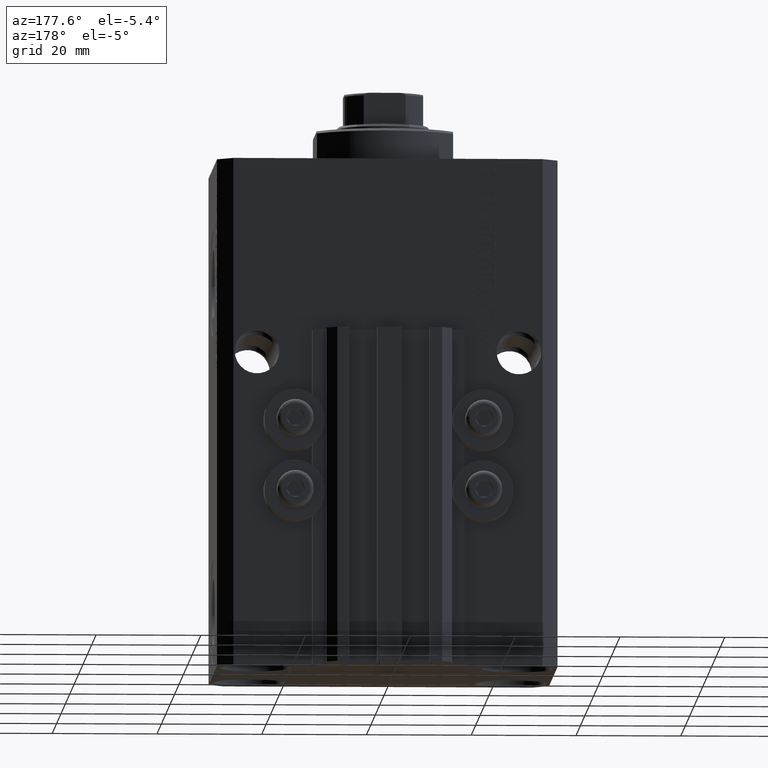
[diagram: clean part render]
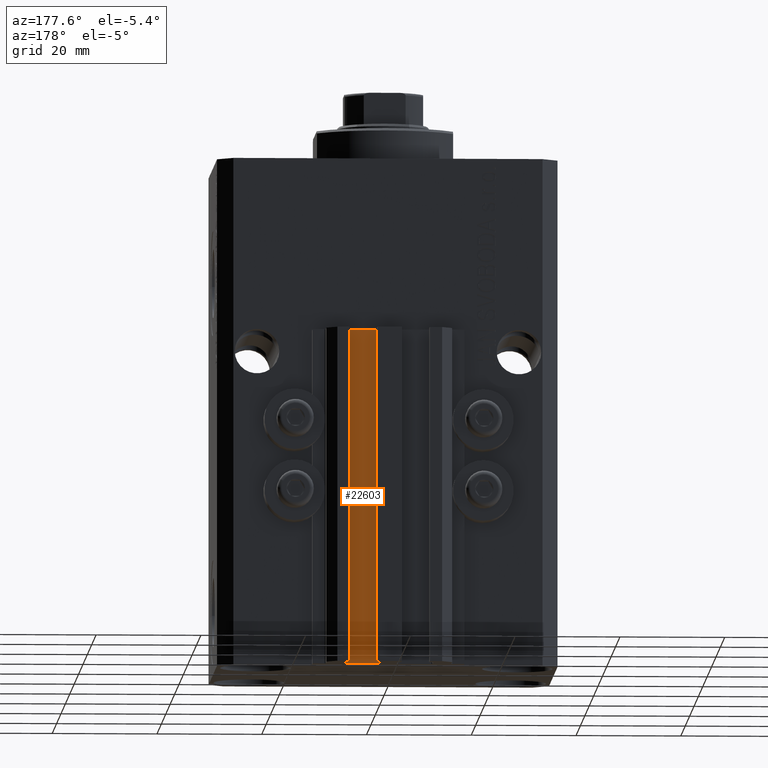
[diagram: same view with one face highlighted and labeled with its STEP entity id]
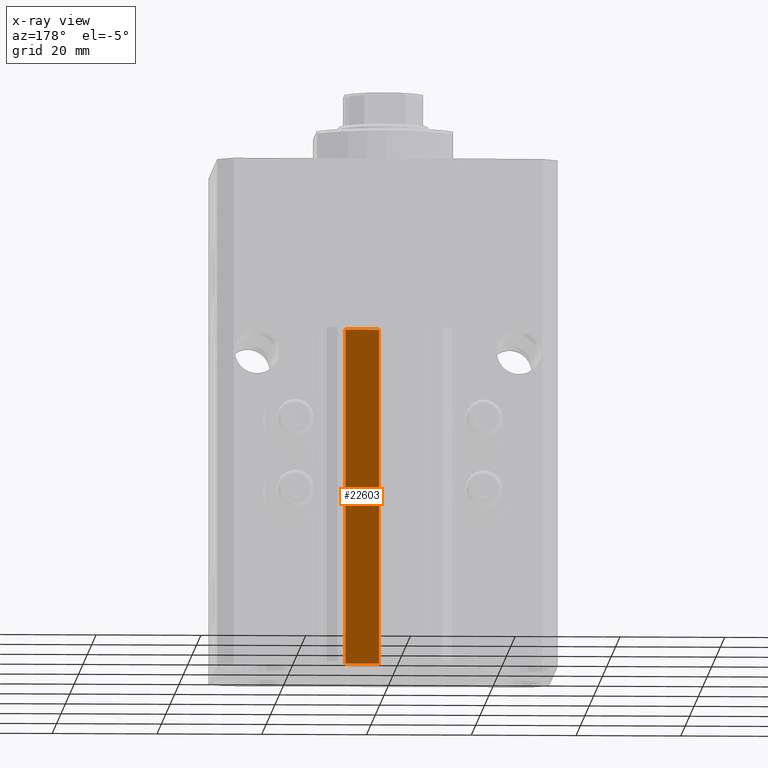
[diagram: x-ray of the same camera — body ghosted, the highlighted face saturated]
A machine part, auxiliary view. The second image highlights one B-rep face of the part: STEP entity #22603.
The next image is the same camera in x-ray: the body ghosted, the highlighted face saturated — about 0% of this face is hidden behind the body in this view.
In plain terms, the highlighted planar face has unit normal (0, 1, 0).
Its self-contained STEP definition (entity closure, byte-faithful):
#1119 = LINE ( 'NONE', #33135, #24439 ) ;
#1964 = LINE ( 'NONE', #41575, #3849 ) ;
#2640 = CARTESIAN_POINT ( 'NONE',  ( 8.200000000000001066, 24.49999999999949196, -97.00000000000000000 ) ) ;
#3849 = VECTOR ( 'NONE', #12928, 1000.000000000000000 ) ;
#3858 = DIRECTION ( 'NONE',  ( 0.000000000000000000, 0.000000000000000000, 1.000000000000000000 ) ) ;
#4519 = VERTEX_POINT ( 'NONE', #2640 ) ;
#4565 = CARTESIAN_POINT ( 'NONE',  ( 8.200000000000001066, 24.49999999999949196, -97.00000000000000000 ) ) ;
#5284 = ORIENTED_EDGE ( 'NONE', *, *, #24708, .F. ) ;
#5786 = CARTESIAN_POINT ( 'NONE',  ( 1.800000000000000933, 24.49999999999949196, -97.00000000000000000 ) ) ;
#12928 = DIRECTION ( 'NONE',  ( -1.000000000000000000, 0.000000000000000000, 0.000000000000000000 ) ) ;
#15680 = DIRECTION ( 'NONE',  ( 0.000000000000000000, 0.000000000000000000, 1.000000000000000000 ) ) ;
#17725 = ORIENTED_EDGE ( 'NONE', *, *, #27808, .F. ) ;
#18665 = AXIS2_PLACEMENT_3D ( 'NONE', #4565, #29214, #3858 ) ;
#18686 = PLANE ( 'NONE',  #18665 ) ;
#19704 = DIRECTION ( 'NONE',  ( 0.000000000000000000, 0.000000000000000000, 1.000000000000000000 ) ) ;
#22351 = CARTESIAN_POINT ( 'NONE',  ( 8.200000000000001066, 24.49999999999949196, -97.00000000000000000 ) ) ;
#22603 = ADVANCED_FACE ( 'NONE', ( #36811 ), #18686, .T. ) ;
#24439 = VECTOR ( 'NONE', #15680, 1000.000000000000000 ) ;
#24708 = EDGE_CURVE ( 'NONE', #25291, #26433, #28960, .T. ) ;
#25291 = VERTEX_POINT ( 'NONE', #29526 ) ;
#25377 = DIRECTION ( 'NONE',  ( -1.000000000000000000, 0.000000000000000000, 0.000000000000000000 ) ) ;
#26433 = VERTEX_POINT ( 'NONE', #30079 ) ;
#27808 = EDGE_CURVE ( 'NONE', #4519, #25291, #33779, .T. ) ;
#28960 = LINE ( 'NONE', #43474, #41184 ) ;
#29214 = DIRECTION ( 'NONE',  ( 0.000000000000000000, 1.000000000000000000, -0.000000000000000000 ) ) ;
#29526 = CARTESIAN_POINT ( 'NONE',  ( 8.200000000000001066, 24.49999999999949196, -33.00000000000000000 ) ) ;
#29655 = ORIENTED_EDGE ( 'NONE', *, *, #37310, .T. ) ;
#30078 = EDGE_LOOP ( 'NONE', ( #5284, #17725, #38521, #29655 ) ) ;
#30079 = CARTESIAN_POINT ( 'NONE',  ( 1.800000000000000933, 24.49999999999949196, -33.00000000000000000 ) ) ;
#31112 = VERTEX_POINT ( 'NONE', #5786 ) ;
#33135 = CARTESIAN_POINT ( 'NONE',  ( 1.800000000000000933, 24.49999999999949196, -97.00000000000000000 ) ) ;
#33779 = LINE ( 'NONE', #22351, #46665 ) ;
#36811 = FACE_OUTER_BOUND ( 'NONE', #30078, .T. ) ;
#37310 = EDGE_CURVE ( 'NONE', #31112, #26433, #1119, .T. ) ;
#38521 = ORIENTED_EDGE ( 'NONE', *, *, #38941, .T. ) ;
#38941 = EDGE_CURVE ( 'NONE', #4519, #31112, #1964, .T. ) ;
#41184 = VECTOR ( 'NONE', #25377, 1000.000000000000000 ) ;
#41575 = CARTESIAN_POINT ( 'NONE',  ( 8.200000000000001066, 24.49999999999949196, -97.00000000000000000 ) ) ;
#43474 = CARTESIAN_POINT ( 'NONE',  ( 8.200000000000001066, 24.49999999999949196, -33.00000000000000000 ) ) ;
#46665 = VECTOR ( 'NONE', #19704, 1000.000000000000000 ) ;